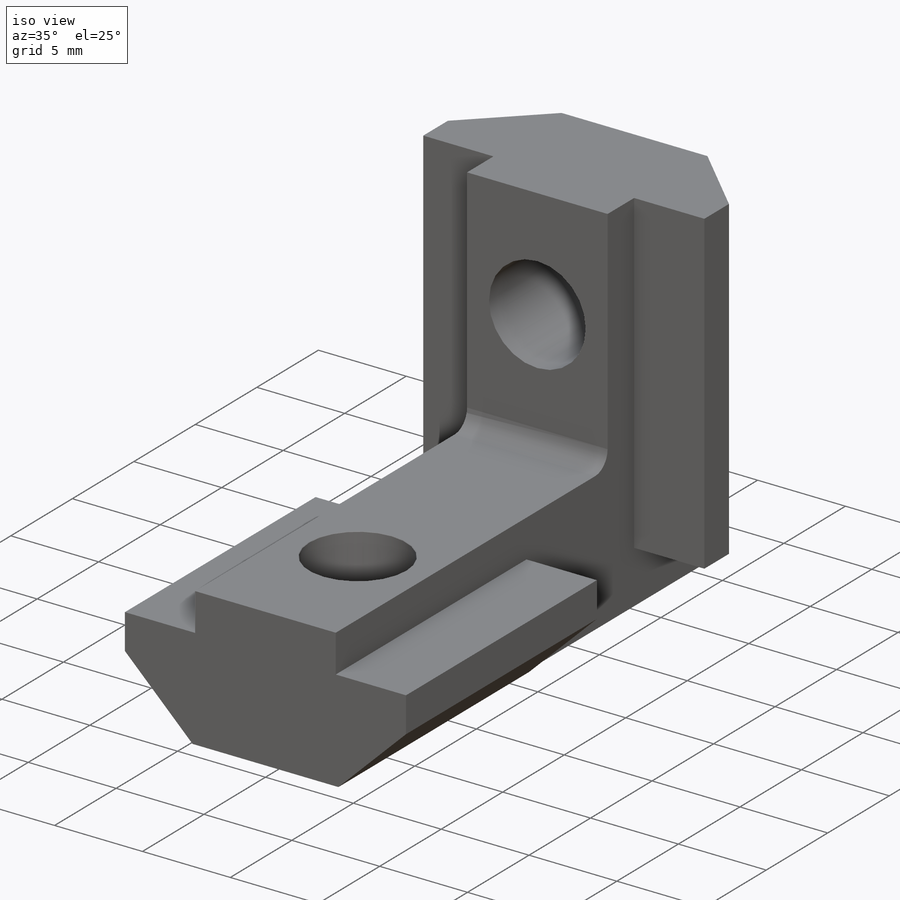
[diagram: iso view]
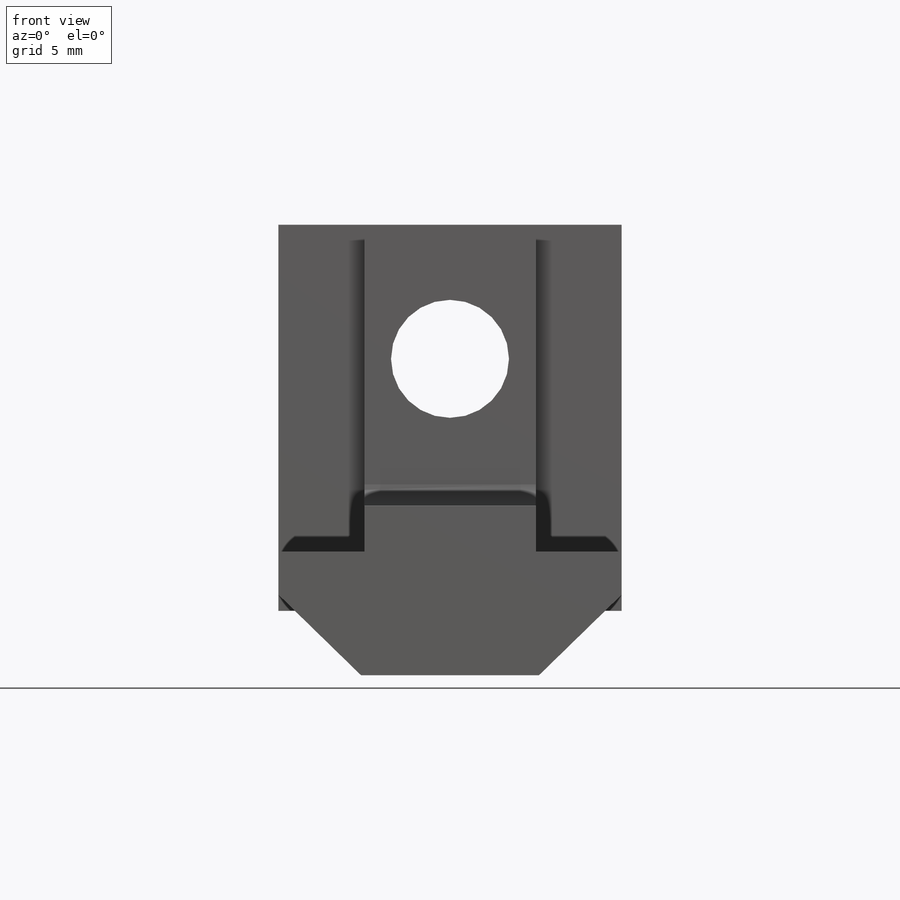
[diagram: front view]
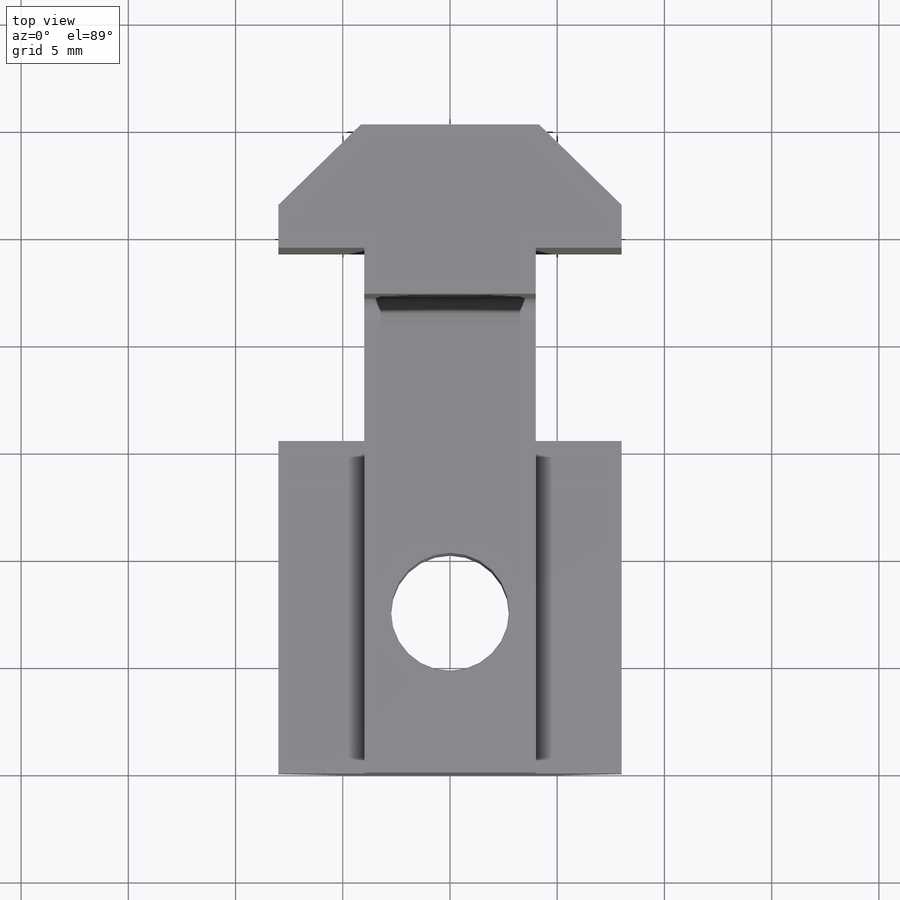
[diagram: top view]
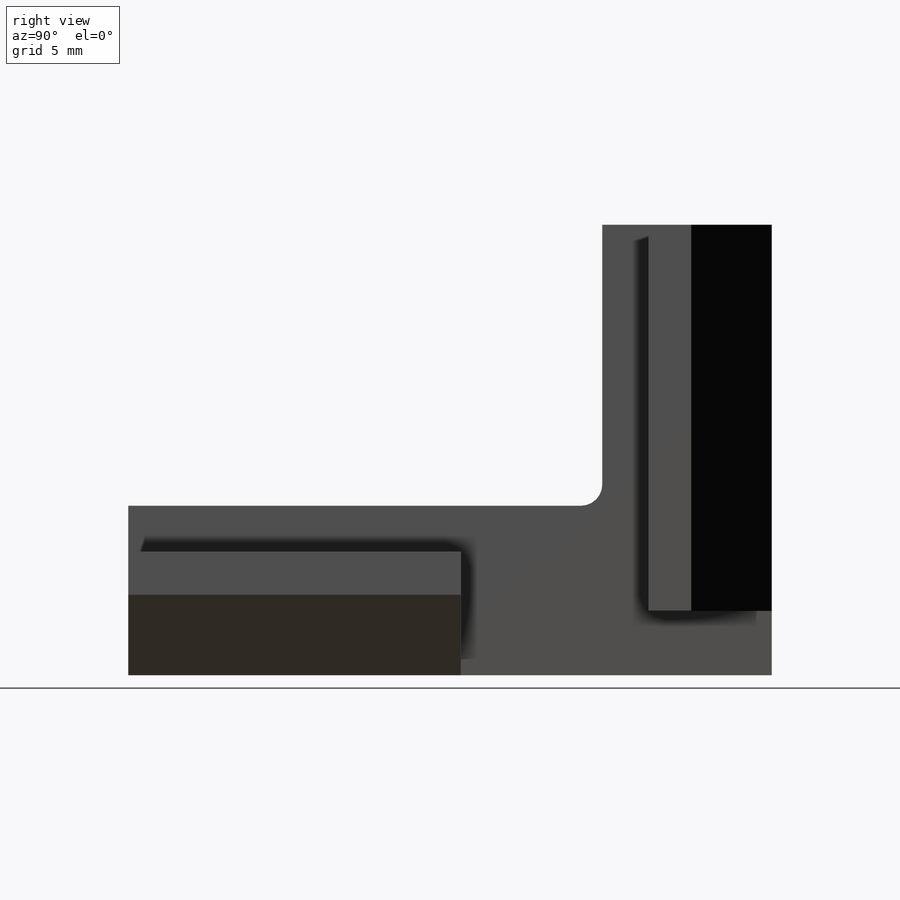
[diagram: right view]
SOLIDWORKS PART (.sldprt)
format: sldprt  version: not decoded by parser v0  size: 266,240 bytes
history: native  units: mm
features: sketch x7, plane x4, extrude x3, hole x2, material x1, fillet x1 (+9 scaffold rows collapsed)
feature tree (27):
  scaffold x9  (default folders/planes/origin — collapsed)
  material  "Materiale <non specificato>"
  plane  "Piano frontale"
  plane  "Piano superiore"
  plane  "Piano destro"
  sketch  "Schizzo1"  dims[D1=8.0mm D2=8.3mm D3=16.0mm D4=7.9mm D5=5.75mm D6=2.0mm]
  extrude  "Estrusione-Estrusione1"  Depth=15.5mm
  sketch  "Schizzo2"
  extrude  "Estrusione-Estrusione2"  Depth=14.5mm
  plane  "Piano1"  Offset=21mm
  sketch  "Schizzo4"  dims[D1=8.3mm D2=8.0mm D3=7.9mm D4=2.0mm D5=16.0mm D6=5.75mm]
  extrude  "Estrusione-Estrusione3"  Depth=18mm
  fillet  "Raccordo1"  Radius=1mm
  hole  "Foro per Vite M5-1"  Diameter=5.5mm Depth=7.9mm
  sketch  "Schizzo6"  dims[D1=7.5mm]
  sketch  "Schizzo7"  dims[hole-wizard template sketch: 55 standard entries collapsed; hole parameters kept: c17.Thru Hole Depth=7.9mm c17.Near C'Sink Dia.=5.55mm c17.D4=~3.666174mm c17.Near C'Sink Angle=90.0deg]
  hole  "Foro per Vite M5-2"  Diameter=5.5mm Depth=7.900025mm
  sketch  "Schizzo9"  dims[D1=6.25mm]
  sketch  "Schizzo10"  dims[hole-wizard template sketch: 60 standard entries collapsed; hole parameters kept: c18.Thru Hole Depth=~7.900025mm]
decode coverage: 12 of 13 modeling features carry decoded parameters
note: ~ marks probable driven/reference dimensions
note: suppression state not decoded; provenance and decode notes live in map.json
